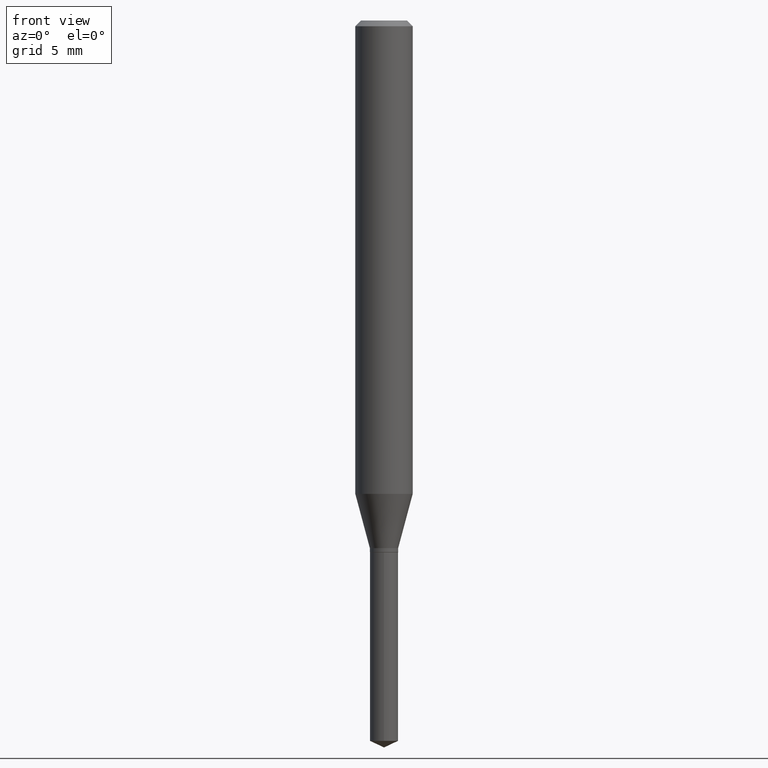
[diagram: clean part render]
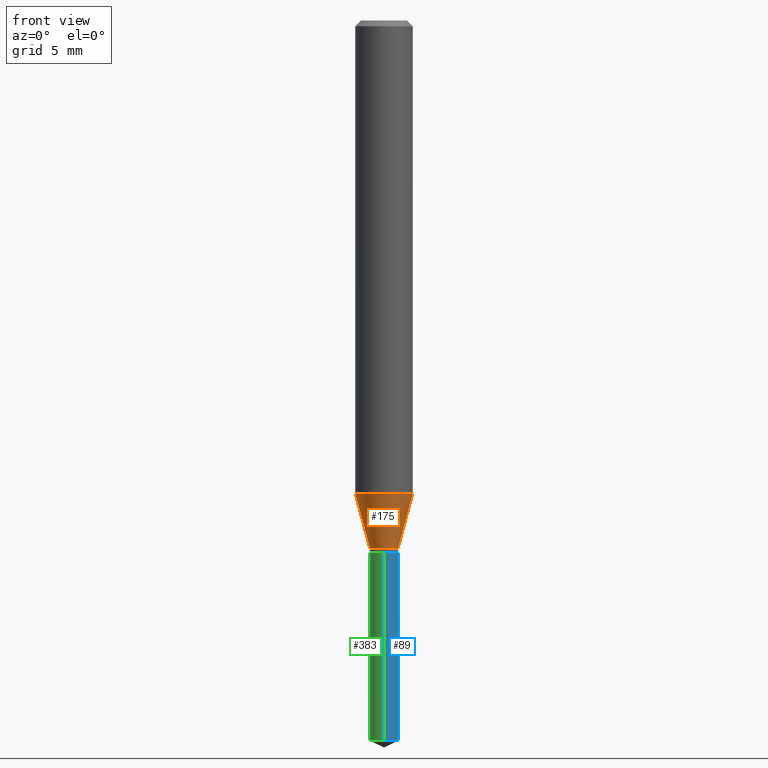
[diagram: same view with three faces highlighted in distinct colors, each labeled with its STEP entity id]
A machine part, front view with three faces highlighted in distinct colors.
Their STEP definitions:

[orange] entity #175 — the highlighted conical surface has half-angle 15 deg.
#26 = CARTESIAN_POINT ( 'NONE',  ( -0.02914999999999999883, -3.598242303731074882E-15, -1.085799999999999876 ) ) ;
#32 = CARTESIAN_POINT ( 'NONE',  ( -0.05905000000000011628, -2.981866418317333587E-15, -0.9742116808536903649 ) ) ;
#36 = CIRCLE ( 'NONE', #228, 0.05905000000000011628 ) ;
#49 = VECTOR ( 'NONE', #121, 39.37007874015747433 ) ;
#60 = EDGE_CURVE ( 'NONE', #437, #104, #274, .T. ) ;
#63 = DIRECTION ( 'NONE',  ( 1.000000000000000000, -6.982962677686268288E-15, 0.000000000000000000 ) ) ;
#79 = ORIENTED_EDGE ( 'NONE', *, *, #60, .T. ) ;
#83 = CARTESIAN_POINT ( 'NONE',  ( 2.655290029755821085E-29, -3.791050437715887034E-15, -1.085799999999999876 ) ) ;
#85 = CARTESIAN_POINT ( 'NONE',  ( 2.382404276148889621E-29, -3.401441903783673869E-15, -0.9742116808536903649 ) ) ;
#95 = CARTESIAN_POINT ( 'NONE',  ( 0.02914999999999999883, -3.994603799770441449E-15, -1.085799999999999876 ) ) ;
#104 = VERTEX_POINT ( 'NONE', #95 ) ;
#110 = CONICAL_SURFACE ( 'NONE', #430, 0.02914999999999999883, 0.2617993877991500740 ) ;
#119 = DIRECTION ( 'NONE',  ( 1.000000000000000000, -6.982962677686268288E-15, 0.000000000000000000 ) ) ;
#121 = DIRECTION ( 'NONE',  ( -0.2588190451025213501, 5.211531920934551042E-15, 0.9659258262890682012 ) ) ;
#123 = VERTEX_POINT ( 'NONE', #250 ) ;
#129 = EDGE_CURVE ( 'NONE', #437, #423, #192, .T. ) ;
#142 = DIRECTION ( 'NONE',  ( -2.445468806185136597E-29, 3.491481338843145583E-15, 1.000000000000000000 ) ) ;
#153 = ORIENTED_EDGE ( 'NONE', *, *, #129, .F. ) ;
#175 = ADVANCED_FACE ( 'NONE', ( #227 ), #110, .T. ) ;
#184 = DIRECTION ( 'NONE',  ( 0.2588190451025213501, 1.565188264969621968E-15, 0.9659258262890682012 ) ) ;
#192 = LINE ( 'NONE', #307, #49 ) ;
#208 = ORIENTED_EDGE ( 'NONE', *, *, #277, .F. ) ;
#227 = FACE_OUTER_BOUND ( 'NONE', #287, .T. ) ;
#228 = AXIS2_PLACEMENT_3D ( 'NONE', #85, #279, #433 ) ;
#250 = CARTESIAN_POINT ( 'NONE',  ( 0.05905000000000011628, -3.813785849901049183E-15, -0.9742116808536903649 ) ) ;
#266 = DIRECTION ( 'NONE',  ( -2.445468806185136597E-29, 3.491481338843145583E-15, 1.000000000000000000 ) ) ;
#273 = CARTESIAN_POINT ( 'NONE',  ( 0.02914999999999999883, -3.994603799770441449E-15, -1.085799999999999876 ) ) ;
#274 = CIRCLE ( 'NONE', #396, 0.02914999999999999883 ) ;
#277 = EDGE_CURVE ( 'NONE', #423, #123, #36, .T. ) ;
#279 = DIRECTION ( 'NONE',  ( -2.445468806185136597E-29, 3.491481338843145583E-15, 1.000000000000000000 ) ) ;
#287 = EDGE_LOOP ( 'NONE', ( #153, #79, #489, #208 ) ) ;
#307 = CARTESIAN_POINT ( 'NONE',  ( -0.02914999999999999883, -3.583927230241817764E-15, -1.085799999999999876 ) ) ;
#312 = VECTOR ( 'NONE', #184, 39.37007874015747433 ) ;
#358 = EDGE_CURVE ( 'NONE', #104, #123, #467, .T. ) ;
#396 = AXIS2_PLACEMENT_3D ( 'NONE', #409, #142, #63 ) ;
#409 = CARTESIAN_POINT ( 'NONE',  ( 2.655290029755821085E-29, -3.791050437715887034E-15, -1.085799999999999876 ) ) ;
#423 = VERTEX_POINT ( 'NONE', #32 ) ;
#430 = AXIS2_PLACEMENT_3D ( 'NONE', #83, #266, #119 ) ;
#433 = DIRECTION ( 'NONE',  ( 1.000000000000000000, -6.982962677686266711E-15, 0.000000000000000000 ) ) ;
#437 = VERTEX_POINT ( 'NONE', #26 ) ;
#467 = LINE ( 'NONE', #273, #312 ) ;
#489 = ORIENTED_EDGE ( 'NONE', *, *, #358, .T. ) ;

[blue] entity #89 — the highlighted cylindrical surface (edge-blend (fillet) strip) has radius 0.7404 mm, axis along (-0, 0, 1).
#29 = DIRECTION ( 'NONE',  ( -6.982962677686265922E-15, -1.000000000000000000, 4.685845615204568404E-15 ) ) ;
#45 = DIRECTION ( 'NONE',  ( -2.445470214571802396E-29, 3.491479321953280158E-15, 1.000000000000000000 ) ) ;
#57 = CARTESIAN_POINT ( 'NONE',  ( 3.625425492141842925E-29, -5.176145202690960331E-15, -1.482507131764781771 ) ) ;
#62 = ORIENTED_EDGE ( 'NONE', *, *, #428, .T. ) ;
#69 = CARTESIAN_POINT ( 'NONE',  ( 2.676565608369631794E-29, -3.821426325363822773E-15, -1.094499999999999806 ) ) ;
#89 = ADVANCED_FACE ( 'NONE', ( #482 ), #293, .T. ) ;
#102 = VERTEX_POINT ( 'NONE', #136 ) ;
#124 = LINE ( 'NONE', #393, #377 ) ;
#130 = VERTEX_POINT ( 'NONE', #426 ) ;
#133 = AXIS2_PLACEMENT_3D ( 'NONE', #57, #210, #369 ) ;
#136 = CARTESIAN_POINT ( 'NONE',  ( -2.035533620545278904E-16, -0.02915000000000381869, -1.094499999999999806 ) ) ;
#172 = CIRCLE ( 'NONE', #133, 0.02914999999999999883 ) ;
#174 = ORIENTED_EDGE ( 'NONE', *, *, #315, .T. ) ;
#188 = ORIENTED_EDGE ( 'NONE', *, *, #378, .F. ) ;
#198 = LINE ( 'NONE', #239, #454 ) ;
#205 = ORIENTED_EDGE ( 'NONE', *, *, #342, .F. ) ;
#210 = DIRECTION ( 'NONE',  ( -2.445470214571802116E-29, 3.491479321953280158E-15, 1.000000000000000000 ) ) ;
#211 = VERTEX_POINT ( 'NONE', #271 ) ;
#219 = DIRECTION ( 'NONE',  ( -2.445470214571802116E-29, 3.491479321953280158E-15, 1.000000000000000000 ) ) ;
#239 = CARTESIAN_POINT ( 'NONE',  ( -2.035533620545278904E-16, -0.02915000000000381869, -1.094499999999999806 ) ) ;
#271 = CARTESIAN_POINT ( 'NONE',  ( 2.071232074741054095E-16, 0.02914999999999482241, -1.482507131764781771 ) ) ;
#276 = DIRECTION ( 'NONE',  ( -2.445470214571802396E-29, 3.491479321953280158E-15, 1.000000000000000000 ) ) ;
#289 = AXIS2_PLACEMENT_3D ( 'NONE', #69, #490, #29 ) ;
#293 = CYLINDRICAL_SURFACE ( 'NONE', #477, 0.02914999999999999883 ) ;
#315 = EDGE_CURVE ( 'NONE', #211, #130, #124, .T. ) ;
#323 = CARTESIAN_POINT ( 'NONE',  ( -2.035533620545183994E-16, -0.02915000000000517524, -1.482507131764781771 ) ) ;
#342 = EDGE_CURVE ( 'NONE', #486, #102, #198, .T. ) ;
#369 = DIRECTION ( 'NONE',  ( -6.982962677686265922E-15, -1.000000000000000000, 0.000000000000000000 ) ) ;
#377 = VECTOR ( 'NONE', #276, 39.37007874015748143 ) ;
#378 = EDGE_CURVE ( 'NONE', #102, #130, #397, .T. ) ;
#393 = CARTESIAN_POINT ( 'NONE',  ( 2.071232074740959185E-16, 0.02914999999999617897, -1.094500000000000028 ) ) ;
#397 = CIRCLE ( 'NONE', #289, 0.02914999999999999883 ) ;
#413 = DIRECTION ( 'NONE',  ( -6.982962677686265922E-15, -1.000000000000000000, 4.685845615204568404E-15 ) ) ;
#426 = CARTESIAN_POINT ( 'NONE',  ( 2.071232074741055081E-16, 0.02914999999999617897, -1.094500000000000028 ) ) ;
#428 = EDGE_CURVE ( 'NONE', #486, #211, #172, .T. ) ;
#441 = EDGE_LOOP ( 'NONE', ( #62, #174, #188, #205 ) ) ;
#451 = CARTESIAN_POINT ( 'NONE',  ( 2.676565608369631794E-29, -3.821426325363822773E-15, -1.094499999999999806 ) ) ;
#454 = VECTOR ( 'NONE', #45, 39.37007874015748143 ) ;
#477 = AXIS2_PLACEMENT_3D ( 'NONE', #451, #219, #413 ) ;
#482 = FACE_OUTER_BOUND ( 'NONE', #441, .T. ) ;
#486 = VERTEX_POINT ( 'NONE', #323 ) ;
#490 = DIRECTION ( 'NONE',  ( -2.445470214571802116E-29, 3.491479321953280158E-15, 1.000000000000000000 ) ) ;

[green] entity #383 — the highlighted cylindrical surface (edge-blend (fillet) strip) has radius 0.7404 mm, axis along (-0, 0, 1).
#45 = DIRECTION ( 'NONE',  ( -2.445470214571802396E-29, 3.491479321953280158E-15, 1.000000000000000000 ) ) ;
#52 = CARTESIAN_POINT ( 'NONE',  ( 3.625425492141842925E-29, -5.176145202690960331E-15, -1.482507131764781771 ) ) ;
#67 = AXIS2_PLACEMENT_3D ( 'NONE', #52, #309, #399 ) ;
#97 = DIRECTION ( 'NONE',  ( -2.445470214571802116E-29, 3.491479321953280158E-15, 1.000000000000000000 ) ) ;
#102 = VERTEX_POINT ( 'NONE', #136 ) ;
#105 = FACE_OUTER_BOUND ( 'NONE', #319, .T. ) ;
#108 = DIRECTION ( 'NONE',  ( -6.982962677686265922E-15, -1.000000000000000000, 4.685845615204568404E-15 ) ) ;
#124 = LINE ( 'NONE', #393, #377 ) ;
#130 = VERTEX_POINT ( 'NONE', #426 ) ;
#136 = CARTESIAN_POINT ( 'NONE',  ( -2.035533620545278904E-16, -0.02915000000000381869, -1.094499999999999806 ) ) ;
#143 = AXIS2_PLACEMENT_3D ( 'NONE', #414, #97, #401 ) ;
#185 = ORIENTED_EDGE ( 'NONE', *, *, #342, .T. ) ;
#198 = LINE ( 'NONE', #239, #454 ) ;
#211 = VERTEX_POINT ( 'NONE', #271 ) ;
#239 = CARTESIAN_POINT ( 'NONE',  ( -2.035533620545278904E-16, -0.02915000000000381869, -1.094499999999999806 ) ) ;
#271 = CARTESIAN_POINT ( 'NONE',  ( 2.071232074741054095E-16, 0.02914999999999482241, -1.482507131764781771 ) ) ;
#276 = DIRECTION ( 'NONE',  ( -2.445470214571802396E-29, 3.491479321953280158E-15, 1.000000000000000000 ) ) ;
#285 = CARTESIAN_POINT ( 'NONE',  ( 2.676565608369631794E-29, -3.821426325363822773E-15, -1.094499999999999806 ) ) ;
#286 = EDGE_CURVE ( 'NONE', #211, #486, #288, .T. ) ;
#288 = CIRCLE ( 'NONE', #67, 0.02914999999999999883 ) ;
#309 = DIRECTION ( 'NONE',  ( -2.445470214571802116E-29, 3.491479321953280158E-15, 1.000000000000000000 ) ) ;
#315 = EDGE_CURVE ( 'NONE', #211, #130, #124, .T. ) ;
#318 = AXIS2_PLACEMENT_3D ( 'NONE', #285, #443, #108 ) ;
#319 = EDGE_LOOP ( 'NONE', ( #365, #382, #185, #400 ) ) ;
#323 = CARTESIAN_POINT ( 'NONE',  ( -2.035533620545183994E-16, -0.02915000000000517524, -1.482507131764781771 ) ) ;
#342 = EDGE_CURVE ( 'NONE', #486, #102, #198, .T. ) ;
#365 = ORIENTED_EDGE ( 'NONE', *, *, #315, .F. ) ;
#368 = EDGE_CURVE ( 'NONE', #130, #102, #470, .T. ) ;
#372 = CYLINDRICAL_SURFACE ( 'NONE', #143, 0.02914999999999999883 ) ;
#377 = VECTOR ( 'NONE', #276, 39.37007874015748143 ) ;
#382 = ORIENTED_EDGE ( 'NONE', *, *, #286, .T. ) ;
#383 = ADVANCED_FACE ( 'NONE', ( #105 ), #372, .T. ) ;
#393 = CARTESIAN_POINT ( 'NONE',  ( 2.071232074740959185E-16, 0.02914999999999617897, -1.094500000000000028 ) ) ;
#399 = DIRECTION ( 'NONE',  ( -6.982962677686265922E-15, -1.000000000000000000, 0.000000000000000000 ) ) ;
#400 = ORIENTED_EDGE ( 'NONE', *, *, #368, .F. ) ;
#401 = DIRECTION ( 'NONE',  ( -6.982962677686265922E-15, -1.000000000000000000, 4.685845615204568404E-15 ) ) ;
#414 = CARTESIAN_POINT ( 'NONE',  ( 2.676565608369631794E-29, -3.821426325363822773E-15, -1.094499999999999806 ) ) ;
#426 = CARTESIAN_POINT ( 'NONE',  ( 2.071232074741055081E-16, 0.02914999999999617897, -1.094500000000000028 ) ) ;
#443 = DIRECTION ( 'NONE',  ( -2.445470214571802116E-29, 3.491479321953280158E-15, 1.000000000000000000 ) ) ;
#454 = VECTOR ( 'NONE', #45, 39.37007874015748143 ) ;
#470 = CIRCLE ( 'NONE', #318, 0.02914999999999999883 ) ;
#486 = VERTEX_POINT ( 'NONE', #323 ) ;